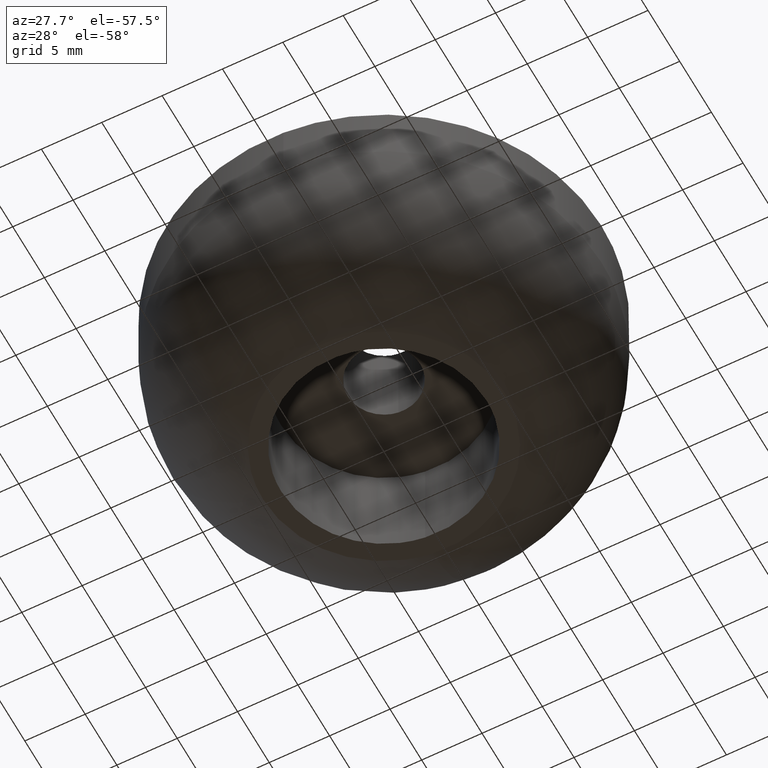
[diagram: clean part render]
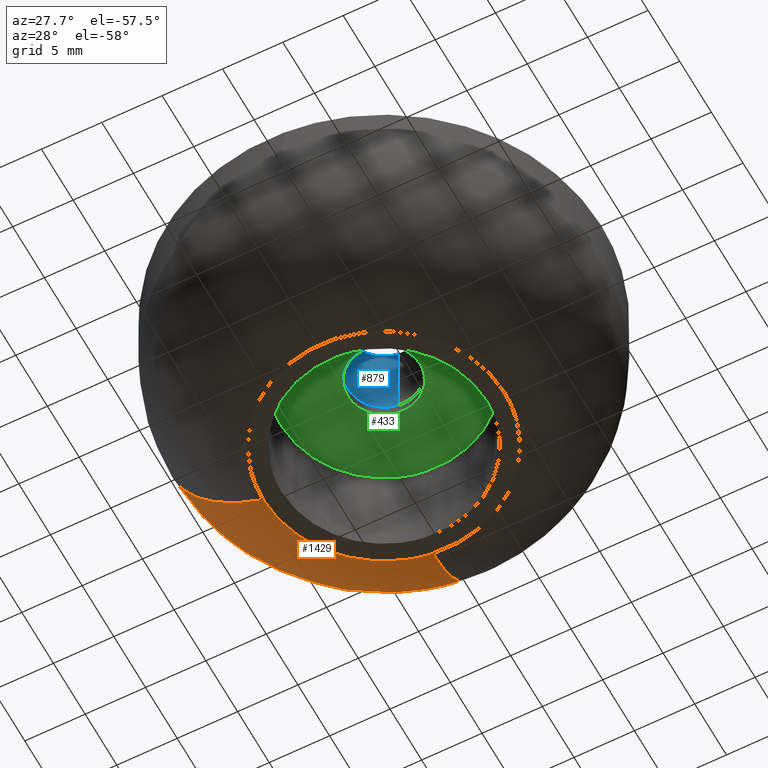
[diagram: same view with three faces highlighted in distinct colors, each labeled with its STEP entity id]
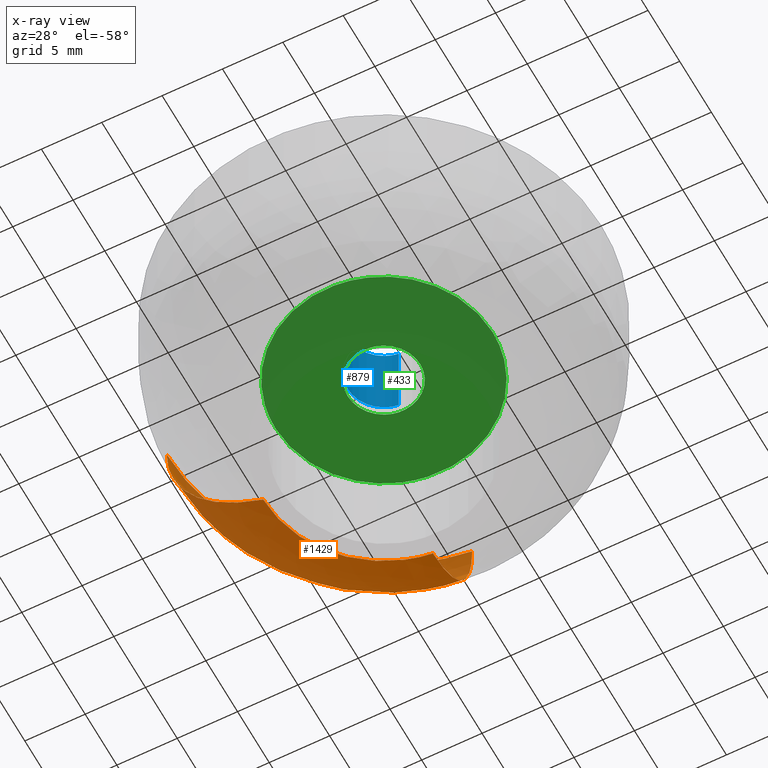
[diagram: x-ray of the same camera — body ghosted, the three highlighted faces saturated]
A machine part, auxiliary view with three faces highlighted in distinct colors.
The next image is the same camera in x-ray (body ghosted, the three faces saturated) — at least one of them is partly hidden behind the body in this view.
Their STEP definitions:

[orange] entity #1429 — the highlighted face is a freeform B-spline surface patch.
#521=CARTESIAN_POINT('',(-18.0,0.0,11.999999999999440));
#522=VERTEX_POINT('',#521);
#612=CARTESIAN_POINT('',(-2.078354027896499,17.879609742237719,11.999999989917240));
#613=VERTEX_POINT('',#612);
#629=CARTESIAN_POINT('',(-18.0,0.0,11.999999999999440));
#630=CARTESIAN_POINT('',(-18.000000000000007,16.028852510177483,12.000000000000002));
#631=CARTESIAN_POINT('',(-2.078354027896499,17.879609742237719,11.999999989917235));
#639=(BOUNDED_CURVE()B_SPLINE_CURVE(2,(#629,#630,#631),.UNSPECIFIED.,.F.,.U.)B_SPLINE_CURVE_WITH_KNOTS((3,3),(0.0,0.230000019867565),.UNSPECIFIED.)CURVE()GEOMETRIC_REPRESENTATION_ITEM()RATIONAL_B_SPLINE_CURVE((1.0,0.730538215415324,0.956886157294847))REPRESENTATION_ITEM(''));
#640=EDGE_CURVE('',#522,#613,#639,.T.);
#1305=CARTESIAN_POINT('',(-1.154628646026271,9.933093624676276,-0.000010077727264));
#1306=VERTEX_POINT('',#1305);
#1324=CARTESIAN_POINT('',(-1.154628646026271,9.933093624676276,-0.000010077727264));
#1325=CARTESIAN_POINT('',(-1.523824349797661,13.109182274628786,1.332263491720581));
#1326=CARTESIAN_POINT('',(-1.767527750917729,15.205687089200302,4.078911204592846));
#1327=CARTESIAN_POINT('',(-2.078351796123537,17.879609998210157,7.582038977724028));
#1328=CARTESIAN_POINT('',(-2.078354027896499,17.879609742237726,11.999999989917237));
#1336=(BOUNDED_CURVE()B_SPLINE_CURVE(2,(#1324,#1325,#1326,#1327,#1328),.UNSPECIFIED.,.F.,.U.)B_SPLINE_CURVE_WITH_KNOTS((3,2,3),(0.199668903974702,0.333333333333333,0.499999999809815),.UNSPECIFIED.)CURVE()GEOMETRIC_REPRESENTATION_ITEM()RATIONAL_B_SPLINE_CURVE((0.861698798369037,0.877431816655485,0.956886118190660,0.857814258626928,0.857814258513876))REPRESENTATION_ITEM(''));
#1337=EDGE_CURVE('',#1306,#613,#1336,.T.);
#1343=CARTESIAN_POINT('',(-10.000002416471730,0.0,0.000001006863800));
#1344=VERTEX_POINT('',#1343);
#1345=CARTESIAN_POINT('',(-10.000002416471734,0.0,0.000001006863800));
#1346=CARTESIAN_POINT('',(-13.197459936161362,0.0,1.332275729066263));
#1347=CARTESIAN_POINT('',(-15.308072191007440,0.0,4.078911204576791));
#1348=CARTESIAN_POINT('',(-17.999999999999616,0.0,7.582038982175359));
#1349=CARTESIAN_POINT('',(-17.999999999999996,0.0,11.999999999999433));
#1357=(BOUNDED_CURVE()B_SPLINE_CURVE(2,(#1345,#1346,#1347,#1348,#1349),.UNSPECIFIED.,.F.,.U.)B_SPLINE_CURVE_WITH_KNOTS((3,2,3),(0.199669450052117,0.333333333333333,0.499999999999978),.UNSPECIFIED.)CURVE()GEOMETRIC_REPRESENTATION_ITEM()RATIONAL_B_SPLINE_CURVE((0.900524012775857,0.916966109739390,1.0,0.896464315038761,0.896464315038747))REPRESENTATION_ITEM(''));
#1358=EDGE_CURVE('',#1344,#522,#1357,.T.);
#1378=CARTESIAN_POINT('',(-9.259027166185659,-0.060071688951619,-0.282535878135775));
#1379=CARTESIAN_POINT('',(-12.936466920007032,-0.083930568838768,0.992633677152635));
#1380=CARTESIAN_POINT('',(-15.308072191007437,-0.099317318612637,4.078911204576790));
#1381=CARTESIAN_POINT('',(-18.273121416782292,-0.118554276407455,7.937464272033591));
#1382=CARTESIAN_POINT('',(-17.975694851051021,-0.116624601094718,12.794571036728566));
#1383=CARTESIAN_POINT('',(-9.259027166185657,-0.030076257616180,-0.282535878135775));
#1384=CARTESIAN_POINT('',(-12.936466920007039,-0.042021748586099,0.992633677152635));
#1385=CARTESIAN_POINT('',(-15.308072191007438,-0.049725474886309,4.078911204576791));
#1386=CARTESIAN_POINT('',(-18.273121416782285,-0.059356895418775,7.937464272033591));
#1387=CARTESIAN_POINT('',(-17.975694851051024,-0.058390759576178,12.794571036728561));
#1388=CARTESIAN_POINT('',(-9.259027166185657,8.245086849219543,-0.282535878135774));
#1389=CARTESIAN_POINT('',(-12.936466920007035,11.519816430288559,0.992633677152636));
#1390=CARTESIAN_POINT('',(-15.308072191007438,13.631711241751855,4.078911204576793));
#1391=CARTESIAN_POINT('',(-18.273121416782285,16.272062969847724,7.937464272033593));
#1392=CARTESIAN_POINT('',(-17.975694851051024,16.007207081458567,12.794571036728563));
#1393=CARTESIAN_POINT('',(-1.037855128322432,9.200729828172447,-0.282535878135775));
#1394=CARTESIAN_POINT('',(-1.450063629182960,12.855015427188592,0.992633677152635));
#1395=CARTESIAN_POINT('',(-1.715899623471145,15.211688430291309,4.078911204576792));
#1396=CARTESIAN_POINT('',(-2.048255441146816,18.158068904604654,7.937464272033592));
#1397=CARTESIAN_POINT('',(-2.014916551325772,17.862515016933983,12.794571036728561));
#1398=CARTESIAN_POINT('',(-1.006697534624909,9.204351639700168,-0.282535878135775));
#1399=CARTESIAN_POINT('',(-1.406531066534580,12.860075726092333,0.992633677152635));
#1400=CARTESIAN_POINT('',(-1.664386361326105,15.217676419238030,4.078911204576791));
#1401=CARTESIAN_POINT('',(-1.986764478600676,18.165216718365961,7.937464272033592));
#1402=CARTESIAN_POINT('',(-1.954426460245238,17.869546487698866,12.794571036728561));
#1410=(BOUNDED_SURFACE()B_SPLINE_SURFACE(2,2,((#1378,#1383,#1388,#1393,#1398),(#1379,#1384,#1389,#1394,#1399),(#1380,#1385,#1390,#1395,#1400),(#1381,#1386,#1391,#1396,#1401),(#1382,#1387,#1392,#1397,#1402)),.UNSPECIFIED.,.F.,.F.,.U.)B_SPLINE_SURFACE_WITH_KNOTS((3,2,3),(3,1,1,3),(0.0,7.874237002220676,17.496470136090672),(0.0,0.136852123772117,27.507255492852430,27.644129613744209),.UNSPECIFIED.)GEOMETRIC_REPRESENTATION_ITEM()RATIONAL_B_SPLINE_SURFACE(((0.900090935303286,0.898881492899293,0.655783758691535,0.859986018723257,0.861002113639817),(0.910092372324741,0.908869491098557,0.663070555730588,0.869541826551379,0.870569211893069),(1.002694619718472,1.001347309859236,0.730538238691624,0.958018040384293,0.959149962577926),(0.889535666934666,0.888340407530023,0.648093453975335,0.849901056343510,0.850905235625647),(0.899721016740665,0.898512071392223,0.655514245272512,0.859632582443163,0.860648259765948)))REPRESENTATION_ITEM('')SURFACE());
#1411=CARTESIAN_POINT('',(-10.000002416471730,0.0,0.000001006863800));
#1412=CARTESIAN_POINT('',(-9.999999816713226,8.904914796612673,-0.000004535431732));
#1413=CARTESIAN_POINT('',(-1.154628646026271,9.933093624676276,-0.000010077727264));
#1421=(BOUNDED_CURVE()B_SPLINE_CURVE(2,(#1411,#1412,#1413),.UNSPECIFIED.,.F.,.U.)B_SPLINE_CURVE_WITH_KNOTS((3,3),(0.0,0.230000184847062),.UNSPECIFIED.)CURVE()GEOMETRIC_REPRESENTATION_ITEM()RATIONAL_B_SPLINE_CURVE((1.0,0.730538022129819,0.956886482014811))REPRESENTATION_ITEM(''));
#1422=EDGE_CURVE('',#1344,#1306,#1421,.T.);
#1423=ORIENTED_EDGE('',*,*,#1422,.F.);
#1424=ORIENTED_EDGE('',*,*,#1358,.T.);
#1425=ORIENTED_EDGE('',*,*,#640,.T.);
#1426=ORIENTED_EDGE('',*,*,#1337,.F.);
#1427=EDGE_LOOP('',(#1423,#1424,#1425,#1426));
#1428=FACE_OUTER_BOUND('',#1427,.T.);
#1429=ADVANCED_FACE('',(#1428),#1410,.T.);

[blue] entity #879 — the highlighted face is a freeform B-spline surface patch.
#716=CARTESIAN_POINT('',(-0.354102703998569,2.979028579087636,17.0));
#717=VERTEX_POINT('',#716);
#735=CARTESIAN_POINT('',(-0.354102703998569,2.979028579087636,10.0));
#736=VERTEX_POINT('',#735);
#737=CARTESIAN_POINT('',(-0.354102703998569,2.979028579087636,17.0));
#738=CARTESIAN_POINT('',(-0.354102703998569,2.979028579087636,10.0));
#739=QUASI_UNIFORM_CURVE('',1,(#737,#738),.UNSPECIFIED.,.F.,.U.);
#740=EDGE_CURVE('',#717,#736,#739,.T.);
#759=CARTESIAN_POINT('',(0.183145618665812,-2.994404395261855,10.0));
#760=VERTEX_POINT('',#759);
#774=CARTESIAN_POINT('',(0.183145618665813,-2.994404395261855,17.0));
#775=VERTEX_POINT('',#774);
#776=CARTESIAN_POINT('',(0.183145618665813,-2.994404395261855,17.0));
#777=CARTESIAN_POINT('',(0.183145618665812,-2.994404395261855,10.0));
#778=QUASI_UNIFORM_CURVE('',1,(#776,#777),.UNSPECIFIED.,.F.,.U.);
#779=EDGE_CURVE('',#775,#760,#778,.T.);
#797=CARTESIAN_POINT('',(0.183145618604571,-2.994404395265600,17.175000000000001));
#798=CARTESIAN_POINT('',(-2.811258776661029,-3.177550013870171,17.175000000000008));
#799=CARTESIAN_POINT('',(-2.994404395265600,-0.183145618604571,17.175000000000001));
#800=CARTESIAN_POINT('',(-3.167358590197582,2.644630472518504,17.175000000000004));
#801=CARTESIAN_POINT('',(-0.354102703970275,2.979028579091000,17.175000000000008));
#802=CARTESIAN_POINT('',(0.183145618604571,-2.994404395265600,9.820624999999998));
#803=CARTESIAN_POINT('',(-2.811258776661029,-3.177550013870171,9.820625000000000));
#804=CARTESIAN_POINT('',(-2.994404395265600,-0.183145618604571,9.820624999999998));
#805=CARTESIAN_POINT('',(-3.167358590197582,2.644630472518504,9.820624999999998));
#806=CARTESIAN_POINT('',(-0.354102703970275,2.979028579091000,9.820624999999998));
#814=(BOUNDED_SURFACE()B_SPLINE_SURFACE(2,1,((#797,#802),(#798,#803),(#799,#804),(#800,#805),(#801,#806)),.UNSPECIFIED.,.F.,.F.,.U.)B_SPLINE_SURFACE_WITH_KNOTS((3,2,3),(2,2),(0.0,4.970562748477139,9.742302987015194),(0.0,7.354375000000008),.UNSPECIFIED.)GEOMETRIC_REPRESENTATION_ITEM()RATIONAL_B_SPLINE_SURFACE(((1.0,1.0),(0.707106781186548,0.707106781186548),(1.0,1.0),(0.718822509939086,0.718822509939086),(0.977505800795127,0.977505800795127)))REPRESENTATION_ITEM('')SURFACE());
#815=CARTESIAN_POINT('',(-3.0,0.0,17.0));
#816=VERTEX_POINT('',#815);
#817=CARTESIAN_POINT('',(-3.0,0.0,17.0));
#818=CARTESIAN_POINT('',(-3.000000000000000,2.664523577803135,17.0));
#819=CARTESIAN_POINT('',(-0.354102703998569,2.979028579087637,16.999999999999996));
#827=(BOUNDED_CURVE()B_SPLINE_CURVE(2,(#817,#818,#819),.UNSPECIFIED.,.F.,.U.)B_SPLINE_CURVE_WITH_KNOTS((3,3),(0.0,0.229562473512434),.UNSPECIFIED.)CURVE()GEOMETRIC_REPRESENTATION_ITEM()RATIONAL_B_SPLINE_CURVE((1.0,0.731050832856661,0.956026754181594))REPRESENTATION_ITEM(''));
#828=EDGE_CURVE('',#816,#717,#827,.T.);
#829=ORIENTED_EDGE('',*,*,#828,.F.);
#830=CARTESIAN_POINT('',(0.183145618665813,-2.994404395261855,16.999999999999996));
#831=CARTESIAN_POINT('',(0.091658289957180,-3.000000000000000,16.999999999999996));
#832=CARTESIAN_POINT('',(0.0,-3.0,17.0));
#833=CARTESIAN_POINT('',(-3.0,-3.0,17.000000000000004));
#834=CARTESIAN_POINT('',(-3.0,0.0,17.0));
#842=(BOUNDED_CURVE()B_SPLINE_CURVE(2,(#830,#831,#832,#833,#834),.UNSPECIFIED.,.F.,.U.)B_SPLINE_CURVE_WITH_KNOTS((3,2,3),(0.739332962234910,0.750000000000000,1.0),.UNSPECIFIED.)CURVE()GEOMETRIC_REPRESENTATION_ITEM()RATIONAL_B_SPLINE_CURVE((0.976072041658075,0.987502787895113,1.0,0.707106781186548,1.0))REPRESENTATION_ITEM(''));
#843=EDGE_CURVE('',#775,#816,#842,.T.);
#844=ORIENTED_EDGE('',*,*,#843,.F.);
#845=ORIENTED_EDGE('',*,*,#779,.T.);
#846=CARTESIAN_POINT('',(-3.0,0.0,10.0));
#847=VERTEX_POINT('',#846);
#848=CARTESIAN_POINT('',(0.183145618665812,-2.994404395261855,10.0));
#849=CARTESIAN_POINT('',(0.091658289957179,-3.000000000000000,10.0));
#850=CARTESIAN_POINT('',(0.0,-3.0,10.0));
#851=CARTESIAN_POINT('',(-3.0,-3.0,10.000000000000002));
#852=CARTESIAN_POINT('',(-3.0,0.0,10.0));
#860=(BOUNDED_CURVE()B_SPLINE_CURVE(2,(#848,#849,#850,#851,#852),.UNSPECIFIED.,.F.,.U.)B_SPLINE_CURVE_WITH_KNOTS((3,2,3),(0.739332962234911,0.750000000000000,1.0),.UNSPECIFIED.)CURVE()GEOMETRIC_REPRESENTATION_ITEM()RATIONAL_B_SPLINE_CURVE((0.976072041658075,0.987502787895113,1.0,0.707106781186548,1.0))REPRESENTATION_ITEM(''));
#861=EDGE_CURVE('',#760,#847,#860,.T.);
#862=ORIENTED_EDGE('',*,*,#861,.T.);
#863=CARTESIAN_POINT('',(-3.0,0.0,10.0));
#864=CARTESIAN_POINT('',(-3.000000000000000,2.664523577803135,9.999999999999998));
#865=CARTESIAN_POINT('',(-0.354102703998569,2.979028579087637,9.999999999999998));
#873=(BOUNDED_CURVE()B_SPLINE_CURVE(2,(#863,#864,#865),.UNSPECIFIED.,.F.,.U.)B_SPLINE_CURVE_WITH_KNOTS((3,3),(0.0,0.229562473512434),.UNSPECIFIED.)CURVE()GEOMETRIC_REPRESENTATION_ITEM()RATIONAL_B_SPLINE_CURVE((1.0,0.731050832856661,0.956026754181594))REPRESENTATION_ITEM(''));
#874=EDGE_CURVE('',#847,#736,#873,.T.);
#875=ORIENTED_EDGE('',*,*,#874,.T.);
#876=ORIENTED_EDGE('',*,*,#740,.F.);
#877=EDGE_LOOP('',(#829,#844,#845,#862,#875,#876));
#878=FACE_OUTER_BOUND('',#877,.T.);
#879=ADVANCED_FACE('',(#878),#814,.F.);

[green] entity #433 — the highlighted face is a freeform B-spline surface patch.
#66=CARTESIAN_POINT('',(-0.354102703998569,2.979028579087636,9.000000000000002));
#67=VERTEX_POINT('',#66);
#68=CARTESIAN_POINT('',(3.0,0.0,9.0));
#69=VERTEX_POINT('',#68);
#70=CARTESIAN_POINT('',(-0.354102703998569,2.979028579087636,9.000000000000002));
#71=CARTESIAN_POINT('',(-0.177672358984323,3.0,9.0));
#72=CARTESIAN_POINT('',(0.0,3.0,9.0));
#73=CARTESIAN_POINT('',(3.0,3.0,9.000000000000002));
#74=CARTESIAN_POINT('',(3.0,0.0,9.0));
#82=(BOUNDED_CURVE()B_SPLINE_CURVE(2,(#70,#71,#72,#73,#74),.UNSPECIFIED.,.F.,.U.)B_SPLINE_CURVE_WITH_KNOTS((3,2,3),(0.229562473512434,0.250000000000000,0.500000000000000),.UNSPECIFIED.)CURVE()GEOMETRIC_REPRESENTATION_ITEM()RATIONAL_B_SPLINE_CURVE((0.956026754181593,0.976055948329886,1.0,0.707106781186548,1.0))REPRESENTATION_ITEM(''));
#83=EDGE_CURVE('',#67,#69,#82,.T.);
#85=CARTESIAN_POINT('',(0.183145618665812,-2.994404395261855,9.0));
#86=VERTEX_POINT('',#85);
#87=CARTESIAN_POINT('',(3.0,0.0,9.0));
#88=CARTESIAN_POINT('',(3.000000000000001,-2.822118200601435,9.000000000000002));
#89=CARTESIAN_POINT('',(0.183145618665812,-2.994404395261855,8.999999999999998));
#97=(BOUNDED_CURVE()B_SPLINE_CURVE(2,(#87,#88,#89),.UNSPECIFIED.,.F.,.U.)B_SPLINE_CURVE_WITH_KNOTS((3,3),(0.500000000000000,0.739332962234911),.UNSPECIFIED.)CURVE()GEOMETRIC_REPRESENTATION_ITEM()RATIONAL_B_SPLINE_CURVE((1.0,0.719603993291434,0.976072041658075))REPRESENTATION_ITEM(''));
#98=EDGE_CURVE('',#69,#86,#97,.T.);
#165=CARTESIAN_POINT('',(-3.0,0.0,9.0));
#166=VERTEX_POINT('',#165);
#167=CARTESIAN_POINT('',(-3.0,0.0,9.0));
#168=CARTESIAN_POINT('',(-3.000000000000000,2.664523577803135,9.0));
#169=CARTESIAN_POINT('',(-0.354102703998569,2.979028579087637,9.000000000000002));
#177=(BOUNDED_CURVE()B_SPLINE_CURVE(2,(#167,#168,#169),.UNSPECIFIED.,.F.,.U.)B_SPLINE_CURVE_WITH_KNOTS((3,3),(0.0,0.229562473512434),.UNSPECIFIED.)CURVE()GEOMETRIC_REPRESENTATION_ITEM()RATIONAL_B_SPLINE_CURVE((1.0,0.731050832856661,0.956026754181594))REPRESENTATION_ITEM(''));
#178=EDGE_CURVE('',#166,#67,#177,.T.);
#212=CARTESIAN_POINT('',(0.183145618665812,-2.994404395261855,8.999999999999998));
#213=CARTESIAN_POINT('',(0.091658289957179,-3.000000000000000,9.0));
#214=CARTESIAN_POINT('',(0.0,-3.0,9.0));
#215=CARTESIAN_POINT('',(-3.0,-3.0,9.000000000000002));
#216=CARTESIAN_POINT('',(-3.0,0.0,9.0));
#224=(BOUNDED_CURVE()B_SPLINE_CURVE(2,(#212,#213,#214,#215,#216),.UNSPECIFIED.,.F.,.U.)B_SPLINE_CURVE_WITH_KNOTS((3,2,3),(0.739332962234911,0.750000000000000,1.0),.UNSPECIFIED.)CURVE()GEOMETRIC_REPRESENTATION_ITEM()RATIONAL_B_SPLINE_CURVE((0.976072041658075,0.987502787895113,1.0,0.707106781186548,1.0))REPRESENTATION_ITEM(''));
#225=EDGE_CURVE('',#86,#166,#224,.T.);
#252=CARTESIAN_POINT('',(-1.062304370295498,8.937086182019106,9.000000000000132));
#253=VERTEX_POINT('',#252);
#254=CARTESIAN_POINT('',(9.0,0.0,9.0));
#255=VERTEX_POINT('',#254);
#256=CARTESIAN_POINT('',(-1.062304370295498,8.937086182019106,9.000000000000132));
#257=CARTESIAN_POINT('',(-0.533015186281705,9.0,9.0));
#258=CARTESIAN_POINT('',(0.0,9.0,9.0));
#259=CARTESIAN_POINT('',(9.0,9.0,9.0));
#260=CARTESIAN_POINT('',(9.0,0.0,9.0));
#268=(BOUNDED_CURVE()B_SPLINE_CURVE(2,(#256,#257,#258,#259,#260),.UNSPECIFIED.,.F.,.U.)B_SPLINE_CURVE_WITH_KNOTS((3,2,3),(0.229562544270831,0.250000000000000,0.500000000000000),.UNSPECIFIED.)CURVE()GEOMETRIC_REPRESENTATION_ITEM()RATIONAL_B_SPLINE_CURVE((0.956026892870993,0.976056031228504,1.0,0.707106781186547,1.0))REPRESENTATION_ITEM(''));
#269=EDGE_CURVE('',#253,#255,#268,.T.);
#310=CARTESIAN_POINT('',(0.549430890956102,-8.983213550619148,8.999999999999741));
#311=VERTEX_POINT('',#310);
#317=CARTESIAN_POINT('',(9.0,0.0,9.0));
#318=CARTESIAN_POINT('',(9.0,-8.466360234321192,9.0));
#319=CARTESIAN_POINT('',(0.549430890956102,-8.983213550619148,8.999999999999739));
#327=(BOUNDED_CURVE()B_SPLINE_CURVE(2,(#317,#318,#319),.UNSPECIFIED.,.F.,.U.)B_SPLINE_CURVE_WITH_KNOTS((3,3),(0.500000000000000,0.739333076813124),.UNSPECIFIED.)CURVE()GEOMETRIC_REPRESENTATION_ITEM()RATIONAL_B_SPLINE_CURVE((1.0,0.719603859054707,0.976072287221122))REPRESENTATION_ITEM(''));
#328=EDGE_CURVE('',#255,#311,#327,.T.);
#351=CARTESIAN_POINT('',(-9.0,0.0,9.0));
#352=VERTEX_POINT('',#351);
#353=CARTESIAN_POINT('',(-9.0,0.0,9.0));
#354=CARTESIAN_POINT('',(-9.0,7.993574103723538,9.0));
#355=CARTESIAN_POINT('',(-1.062304370295498,8.937086182019106,9.000000000000132));
#363=(BOUNDED_CURVE()B_SPLINE_CURVE(2,(#353,#354,#355),.UNSPECIFIED.,.F.,.U.)B_SPLINE_CURVE_WITH_KNOTS((3,3),(0.0,0.229562544270831),.UNSPECIFIED.)CURVE()GEOMETRIC_REPRESENTATION_ITEM()RATIONAL_B_SPLINE_CURVE((1.0,0.731050749958043,0.956026892870993))REPRESENTATION_ITEM(''));
#364=EDGE_CURVE('',#352,#253,#363,.T.);
#366=CARTESIAN_POINT('',(0.549430890956102,-8.983213550619148,8.999999999999739));
#367=CARTESIAN_POINT('',(0.274971878896206,-9.0,9.0));
#368=CARTESIAN_POINT('',(0.0,-9.0,9.0));
#369=CARTESIAN_POINT('',(-9.0,-9.0,9.0));
#370=CARTESIAN_POINT('',(-9.0,0.0,9.0));
#378=(BOUNDED_CURVE()B_SPLINE_CURVE(2,(#366,#367,#368,#369,#370),.UNSPECIFIED.,.F.,.U.)B_SPLINE_CURVE_WITH_KNOTS((3,2,3),(0.739333076813124,0.750000000000000,1.0),.UNSPECIFIED.)CURVE()GEOMETRIC_REPRESENTATION_ITEM()RATIONAL_B_SPLINE_CURVE((0.976072287221122,0.987502922131841,1.0,0.707106781186547,1.0))REPRESENTATION_ITEM(''));
#379=EDGE_CURVE('',#311,#352,#378,.T.);
#416=CARTESIAN_POINT('',(-9.899099965112507,-9.898881420025511,9.0));
#417=CARTESIAN_POINT('',(9.899100447910129,-9.898881420025511,9.0));
#418=CARTESIAN_POINT('',(-9.899099965112507,9.898936298021955,9.0));
#419=CARTESIAN_POINT('',(9.899100447910129,9.898936298021955,9.0));
#420=B_SPLINE_SURFACE_WITH_KNOTS('',1,1,((#416,#418),(#417,#419)),.UNSPECIFIED.,.F.,.F.,.U.,(2,2),(2,2),(0.0,19.798200413022631),(0.0,19.797817718047469),.UNSPECIFIED.);
#421=ORIENTED_EDGE('',*,*,#364,.T.);
#422=ORIENTED_EDGE('',*,*,#269,.T.);
#423=ORIENTED_EDGE('',*,*,#328,.T.);
#424=ORIENTED_EDGE('',*,*,#379,.T.);
#425=EDGE_LOOP('',(#421,#422,#423,#424));
#426=FACE_OUTER_BOUND('',#425,.T.);
#427=ORIENTED_EDGE('',*,*,#98,.F.);
#428=ORIENTED_EDGE('',*,*,#83,.F.);
#429=ORIENTED_EDGE('',*,*,#178,.F.);
#430=ORIENTED_EDGE('',*,*,#225,.F.);
#431=EDGE_LOOP('',(#427,#428,#429,#430));
#432=FACE_BOUND('',#431,.T.);
#433=ADVANCED_FACE('',(#426,#432),#420,.F.);